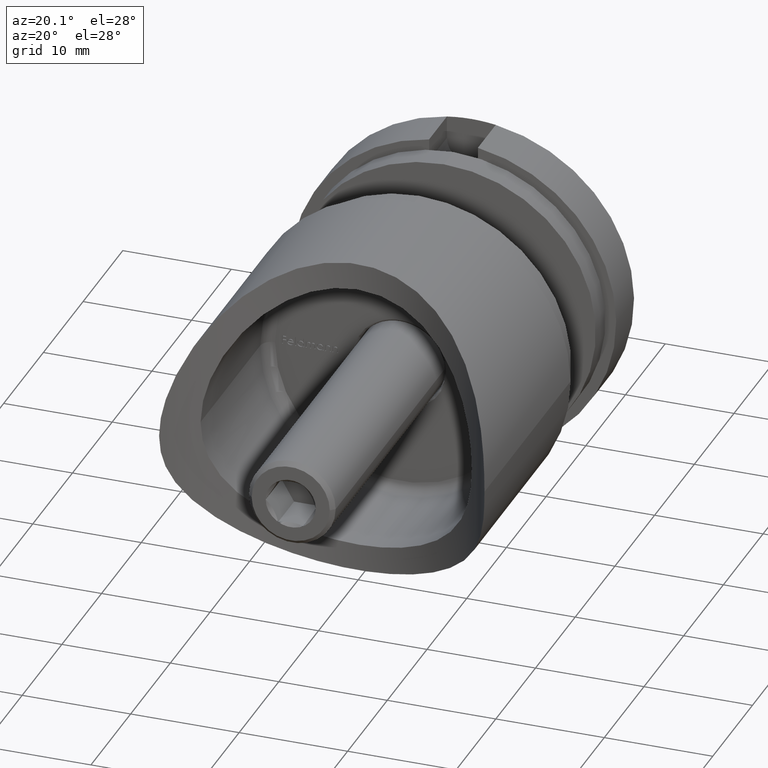
[diagram: clean part render]
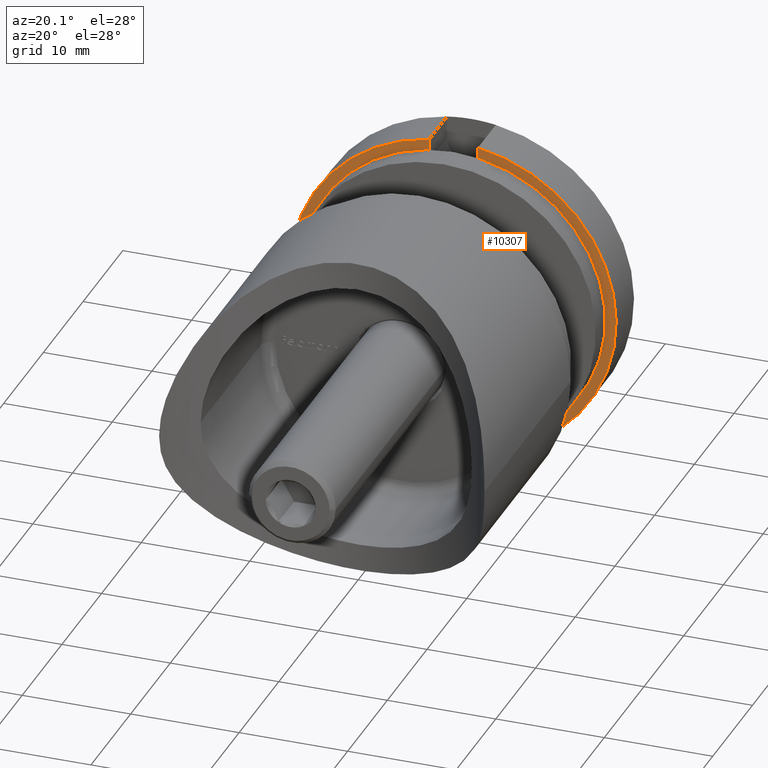
[diagram: same view with one face highlighted and labeled with its STEP entity id]
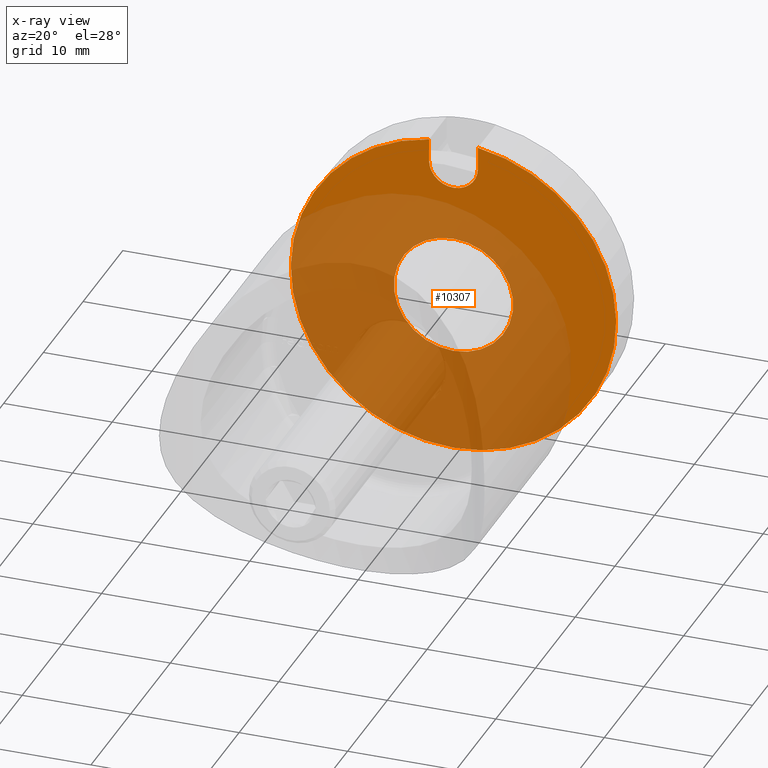
[diagram: x-ray of the same camera — body ghosted, the highlighted face saturated]
A machine part, auxiliary view. The second image highlights one B-rep face of the part: STEP entity #10307.
The next image is the same camera in x-ray: the body ghosted, the highlighted face saturated — about 67% of this face is hidden behind the body in this view.
In plain terms, the highlighted planar face has unit normal (0, -1, 0).
Its self-contained STEP definition (entity closure, byte-faithful):
#621 = EDGE_CURVE ( 'NONE', #14938, #5879, #1096, .T. ) ;
#838 = CARTESIAN_POINT ( 'NONE',  ( -2.250000000000000888, 5.000000000000000888, 14.83028994996389116 ) ) ;
#983 = AXIS2_PLACEMENT_3D ( 'NONE', #4191, #11022, #9985 ) ;
#1027 = ORIENTED_EDGE ( 'NONE', *, *, #12380, .F. ) ;
#1096 = CIRCLE ( 'NONE', #8388, 5.500000000000000000 ) ;
#1306 = DIRECTION ( 'NONE',  ( 0.000000000000000000, -1.000000000000000000, -0.000000000000000000 ) ) ;
#1552 = DIRECTION ( 'NONE',  ( -0.000000000000000000, -1.000000000000000000, -0.000000000000000000 ) ) ;
#1607 = CARTESIAN_POINT ( 'NONE',  ( 0.000000000000000000, 5.000000000000000888, 0.000000000000000000 ) ) ;
#2074 = DIRECTION ( 'NONE',  ( -0.000000000000000000, -1.000000000000000000, -0.000000000000000000 ) ) ;
#2077 = EDGE_CURVE ( 'NONE', #9823, #9300, #12778, .T. ) ;
#2403 = DIRECTION ( 'NONE',  ( 0.000000000000000000, 0.000000000000000000, -1.000000000000000000 ) ) ;
#3270 = DIRECTION ( 'NONE',  ( -0.000000000000000000, -1.000000000000000000, -0.000000000000000000 ) ) ;
#4009 = FACE_BOUND ( 'NONE', #8778, .T. ) ;
#4023 = EDGE_CURVE ( 'NONE', #8938, #9300, #7421, .T. ) ;
#4025 = AXIS2_PLACEMENT_3D ( 'NONE', #10363, #3270, #4442 ) ;
#4191 = CARTESIAN_POINT ( 'NONE',  ( 0.000000000000000000, 5.000000000000000888, 0.000000000000000000 ) ) ;
#4279 = DIRECTION ( 'NONE',  ( 0.000000000000000000, 0.000000000000000000, -1.000000000000000000 ) ) ;
#4301 = VECTOR ( 'NONE', #4406, 1000.000000000000000 ) ;
#4319 = CARTESIAN_POINT ( 'NONE',  ( -2.250000000000000888, 5.000000000000000888, 14.83028994996389116 ) ) ;
#4406 = DIRECTION ( 'NONE',  ( 2.003010763737971244E-16, 0.000000000000000000, -1.000000000000000000 ) ) ;
#4442 = DIRECTION ( 'NONE',  ( 0.000000000000000000, 0.000000000000000000, -1.000000000000000000 ) ) ;
#4569 = CARTESIAN_POINT ( 'NONE',  ( 2.250000000000000000, 5.000000000000000888, 12.75000000000000000 ) ) ;
#4663 = CIRCLE ( 'NONE', #983, 5.500000000000000000 ) ;
#4926 = EDGE_CURVE ( 'NONE', #13623, #15271, #11574, .T. ) ;
#5879 = VERTEX_POINT ( 'NONE', #11617 ) ;
#6062 = ORIENTED_EDGE ( 'NONE', *, *, #2077, .T. ) ;
#6500 = ORIENTED_EDGE ( 'NONE', *, *, #621, .F. ) ;
#6602 = DIRECTION ( 'NONE',  ( 0.000000000000000000, 1.000000000000000000, 0.000000000000000000 ) ) ;
#6900 = EDGE_CURVE ( 'NONE', #12600, #15271, #10043, .T. ) ;
#6939 = AXIS2_PLACEMENT_3D ( 'NONE', #14593, #13616, #11250 ) ;
#7421 = LINE ( 'NONE', #838, #4301 ) ;
#7485 = AXIS2_PLACEMENT_3D ( 'NONE', #11292, #6602, #4279 ) ;
#7494 = ORIENTED_EDGE ( 'NONE', *, *, #11195, .T. ) ;
#7969 = ORIENTED_EDGE ( 'NONE', *, *, #14797, .T. ) ;
#8352 = CARTESIAN_POINT ( 'NONE',  ( 5.500000000000000000, 5.000000000000000888, 0.000000000000000000 ) ) ;
#8388 = AXIS2_PLACEMENT_3D ( 'NONE', #9095, #2074, #10295 ) ;
#8577 = VECTOR ( 'NONE', #14391, 1000.000000000000000 ) ;
#8778 = EDGE_LOOP ( 'NONE', ( #1027, #6500 ) ) ;
#8938 = VERTEX_POINT ( 'NONE', #4319 ) ;
#9095 = CARTESIAN_POINT ( 'NONE',  ( 0.000000000000000000, 5.000000000000000888, 0.000000000000000000 ) ) ;
#9300 = VERTEX_POINT ( 'NONE', #12517 ) ;
#9375 = PLANE ( 'NONE',  #12741 ) ;
#9662 = DIRECTION ( 'NONE',  ( 0.000000000000000000, 0.000000000000000000, -1.000000000000000000 ) ) ;
#9823 = VERTEX_POINT ( 'NONE', #12618 ) ;
#9840 = ORIENTED_EDGE ( 'NONE', *, *, #4926, .F. ) ;
#9985 = DIRECTION ( 'NONE',  ( 0.000000000000000000, 0.000000000000000000, -1.000000000000000000 ) ) ;
#10043 = CIRCLE ( 'NONE', #10877, 15.00000000000000000 ) ;
#10295 = DIRECTION ( 'NONE',  ( 0.000000000000000000, 0.000000000000000000, -1.000000000000000000 ) ) ;
#10307 = ADVANCED_FACE ( 'NONE', ( #14146, #4009 ), #9375, .T. ) ;
#10363 = CARTESIAN_POINT ( 'NONE',  ( 0.000000000000000000, 5.000000000000000888, 0.000000000000000000 ) ) ;
#10877 = AXIS2_PLACEMENT_3D ( 'NONE', #1607, #1552, #9662 ) ;
#10957 = EDGE_LOOP ( 'NONE', ( #11545, #7494, #14279, #9840, #7969, #6062 ) ) ;
#11022 = DIRECTION ( 'NONE',  ( -0.000000000000000000, -1.000000000000000000, -0.000000000000000000 ) ) ;
#11195 = EDGE_CURVE ( 'NONE', #8938, #12600, #12790, .T. ) ;
#11250 = DIRECTION ( 'NONE',  ( 0.000000000000000000, 0.000000000000000000, -1.000000000000000000 ) ) ;
#11292 = CARTESIAN_POINT ( 'NONE',  ( 0.000000000000000000, 5.000000000000000888, 12.75000000000000000 ) ) ;
#11360 = CARTESIAN_POINT ( 'NONE',  ( 0.000000000000000000, 5.000000000000000888, -15.00000000000000000 ) ) ;
#11545 = ORIENTED_EDGE ( 'NONE', *, *, #4023, .F. ) ;
#11574 = LINE ( 'NONE', #13166, #8577 ) ;
#11617 = CARTESIAN_POINT ( 'NONE',  ( 0.000000000000000000, 5.000000000000000888, -5.500000000000000000 ) ) ;
#11803 = CARTESIAN_POINT ( 'NONE',  ( 6.735557395310442023E-16, 5.000000000000000888, 5.500000000000000000 ) ) ;
#12380 = EDGE_CURVE ( 'NONE', #5879, #14938, #4663, .T. ) ;
#12517 = CARTESIAN_POINT ( 'NONE',  ( -2.250000000000000444, 5.000000000000000888, 12.75000000000000000 ) ) ;
#12600 = VERTEX_POINT ( 'NONE', #11360 ) ;
#12618 = CARTESIAN_POINT ( 'NONE',  ( 0.000000000000000000, 5.000000000000000888, 10.49999999999999822 ) ) ;
#12741 = AXIS2_PLACEMENT_3D ( 'NONE', #8352, #1306, #2403 ) ;
#12778 = CIRCLE ( 'NONE', #6939, 2.250000000000000444 ) ;
#12790 = CIRCLE ( 'NONE', #4025, 15.00000000000000000 ) ;
#13166 = CARTESIAN_POINT ( 'NONE',  ( 2.250000000000000000, 5.000000000000000888, 14.83028994996389116 ) ) ;
#13526 = CARTESIAN_POINT ( 'NONE',  ( 2.250000000000005773, 5.000000000000000888, 14.83028994996389116 ) ) ;
#13616 = DIRECTION ( 'NONE',  ( 0.000000000000000000, 1.000000000000000000, 0.000000000000000000 ) ) ;
#13623 = VERTEX_POINT ( 'NONE', #4569 ) ;
#14146 = FACE_OUTER_BOUND ( 'NONE', #10957, .T. ) ;
#14279 = ORIENTED_EDGE ( 'NONE', *, *, #6900, .T. ) ;
#14391 = DIRECTION ( 'NONE',  ( -0.000000000000000000, -0.000000000000000000, 1.000000000000000000 ) ) ;
#14593 = CARTESIAN_POINT ( 'NONE',  ( -4.336808689942017736E-16, 5.000000000000000888, 12.75000000000000000 ) ) ;
#14797 = EDGE_CURVE ( 'NONE', #13623, #9823, #14939, .T. ) ;
#14938 = VERTEX_POINT ( 'NONE', #11803 ) ;
#14939 = CIRCLE ( 'NONE', #7485, 2.250000000000000444 ) ;
#15271 = VERTEX_POINT ( 'NONE', #13526 ) ;